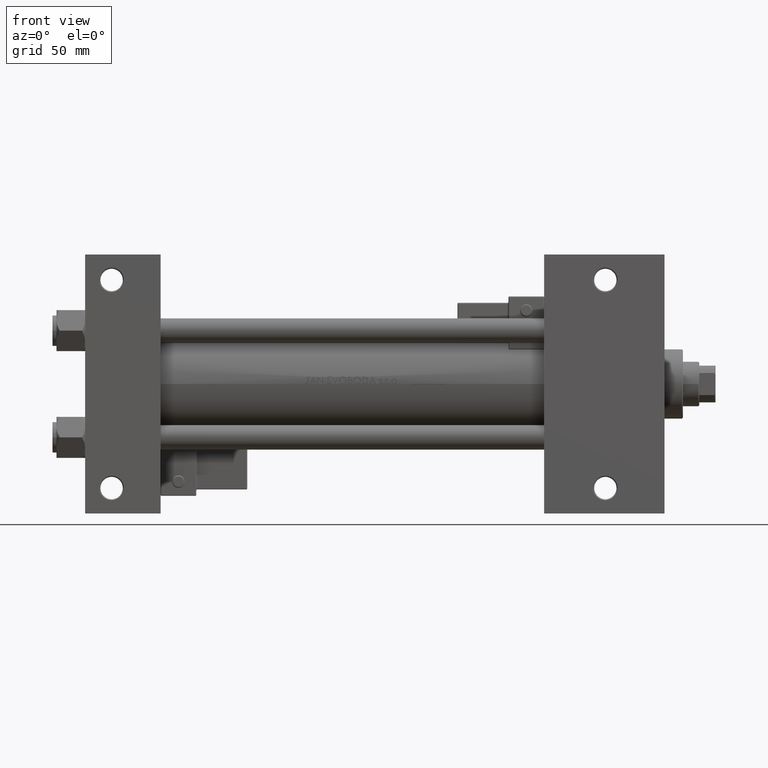
[diagram: clean part render]
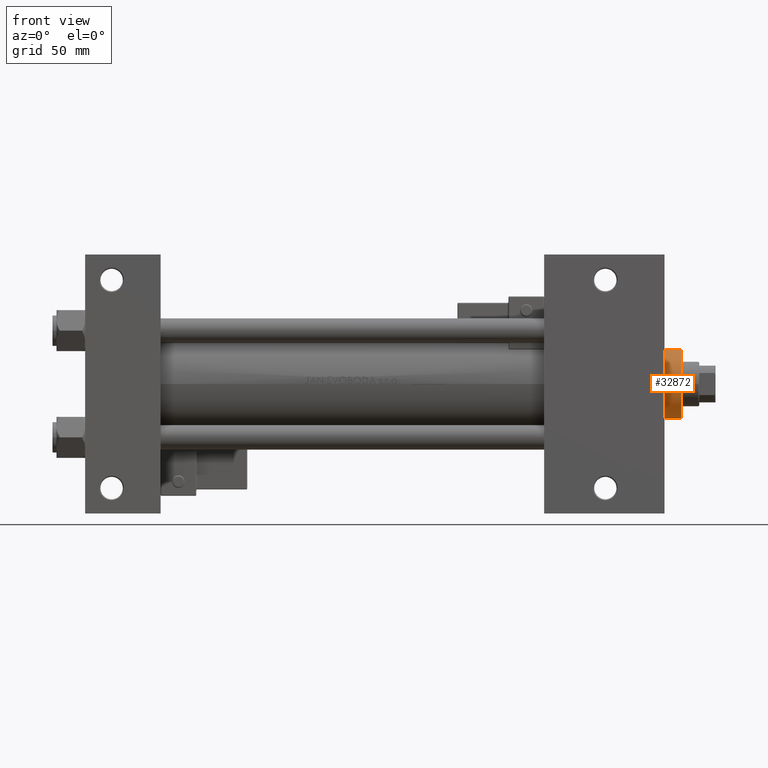
[diagram: same view with one face highlighted and labeled with its STEP entity id]
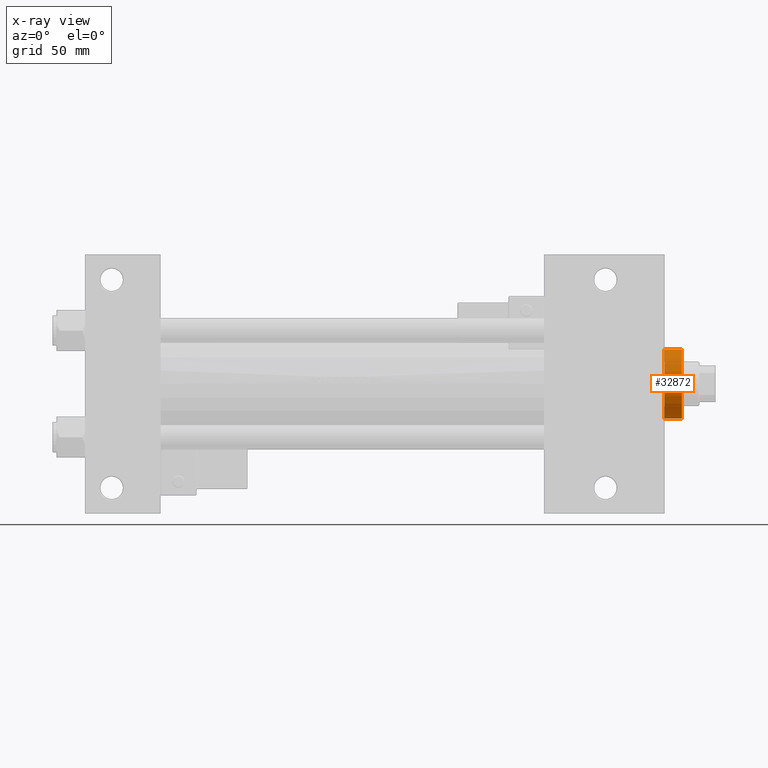
[diagram: x-ray of the same camera — body ghosted, the highlighted face saturated]
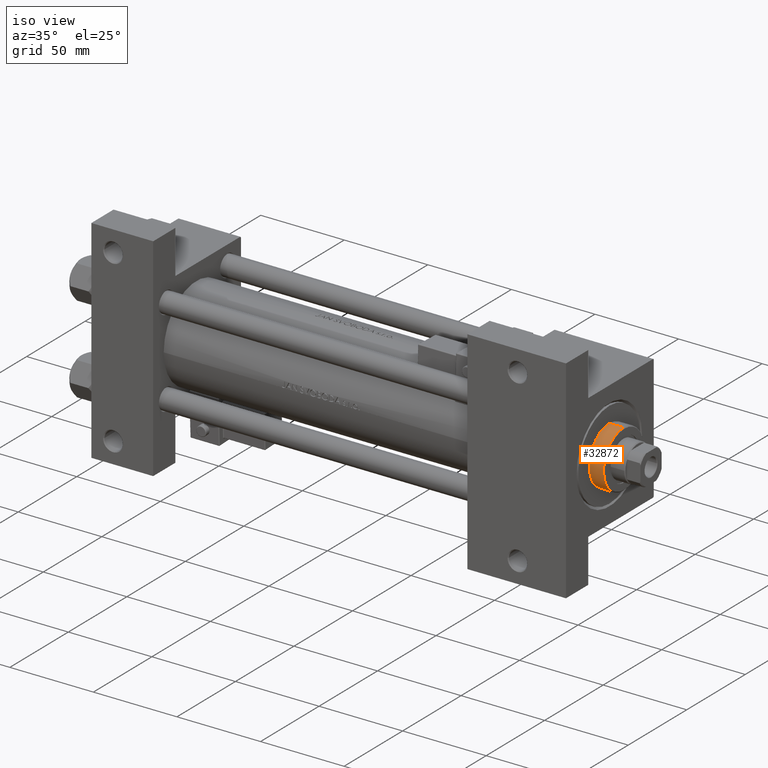
[diagram: same view with one face highlighted and labeled with its STEP entity id]
A machine part, front view. The second image highlights one B-rep face of the part: STEP entity #32872.
The next image is the same camera in x-ray: the body ghosted, the highlighted face saturated — about 0% of this face is hidden behind the body in this view.
A second angle (iso view) of the same face is appended — the face is thin or edge-on in the first view.
In plain terms, the highlighted cylindrical surface (edge-blend (fillet) strip) has radius 17 mm, axis along (-1, -0, 0).
Its self-contained STEP definition (entity closure, byte-faithful):
#762 = CARTESIAN_POINT ( 'NONE',  ( 0.000000000000000000, 0.000000000000000000, 37.19999999999999574 ) ) ;
#1821 = EDGE_LOOP ( 'NONE', ( #39322, #24455, #22332, #39094 ) ) ;
#3299 = CARTESIAN_POINT ( 'NONE',  ( -17.00000000000000000, 0.000000000000000000, 37.19999999999999574 ) ) ;
#3657 = CARTESIAN_POINT ( 'NONE',  ( 17.00000000000000000, 2.081899558550500280E-15, 37.69999999999999574 ) ) ;
#4299 = VERTEX_POINT ( 'NONE', #20470 ) ;
#8144 = VECTOR ( 'NONE', #45166, 1000.000000000000000 ) ;
#8539 = DIRECTION ( 'NONE',  ( 1.000000000000000000, 0.000000000000000000, 0.000000000000000000 ) ) ;
#9170 = LINE ( 'NONE', #45419, #8144 ) ;
#9932 = CIRCLE ( 'NONE', #17397, 17.00000000000000000 ) ;
#11845 = DIRECTION ( 'NONE',  ( 0.000000000000000000, 0.000000000000000000, 1.000000000000000000 ) ) ;
#11947 = DIRECTION ( 'NONE',  ( -0.000000000000000000, -0.000000000000000000, -1.000000000000000000 ) ) ;
#15261 = VERTEX_POINT ( 'NONE', #3299 ) ;
#17397 = AXIS2_PLACEMENT_3D ( 'NONE', #34649, #11845, #24023 ) ;
#17950 = CYLINDRICAL_SURFACE ( 'NONE', #49365, 17.00000000000000000 ) ;
#20470 = CARTESIAN_POINT ( 'NONE',  ( 17.00000000000000000, 2.081899558550500280E-15, 28.69999999999999929 ) ) ;
#21855 = CARTESIAN_POINT ( 'NONE',  ( -17.00000000000000000, 0.000000000000000000, 28.69999999999999929 ) ) ;
#22332 = ORIENTED_EDGE ( 'NONE', *, *, #39666, .T. ) ;
#23808 = DIRECTION ( 'NONE',  ( 0.000000000000000000, 0.000000000000000000, -1.000000000000000000 ) ) ;
#23889 = EDGE_CURVE ( 'NONE', #43953, #4299, #39150, .T. ) ;
#24023 = DIRECTION ( 'NONE',  ( 1.000000000000000000, 0.000000000000000000, 0.000000000000000000 ) ) ;
#24455 = ORIENTED_EDGE ( 'NONE', *, *, #38136, .T. ) ;
#24965 = CARTESIAN_POINT ( 'NONE',  ( 0.000000000000000000, 0.000000000000000000, 37.69999999999999574 ) ) ;
#25600 = AXIS2_PLACEMENT_3D ( 'NONE', #762, #23808, #8539 ) ;
#25721 = DIRECTION ( 'NONE',  ( -0.000000000000000000, -0.000000000000000000, -1.000000000000000000 ) ) ;
#27847 = CARTESIAN_POINT ( 'NONE',  ( 17.00000000000000000, 2.081899558550500280E-15, 37.19999999999999574 ) ) ;
#32872 = ADVANCED_FACE ( 'NONE', ( #49786 ), #17950, .T. ) ;
#34649 = CARTESIAN_POINT ( 'NONE',  ( 0.000000000000000000, 0.000000000000000000, 28.69999999999999929 ) ) ;
#34881 = VECTOR ( 'NONE', #11947, 1000.000000000000000 ) ;
#36898 = DIRECTION ( 'NONE',  ( -1.000000000000000000, 0.000000000000000000, 0.000000000000000000 ) ) ;
#38136 = EDGE_CURVE ( 'NONE', #43953, #15261, #42125, .T. ) ;
#39094 = ORIENTED_EDGE ( 'NONE', *, *, #43521, .T. ) ;
#39150 = LINE ( 'NONE', #3657, #34881 ) ;
#39322 = ORIENTED_EDGE ( 'NONE', *, *, #23889, .F. ) ;
#39666 = EDGE_CURVE ( 'NONE', #15261, #45057, #9170, .T. ) ;
#42125 = CIRCLE ( 'NONE', #25600, 17.00000000000000000 ) ;
#43521 = EDGE_CURVE ( 'NONE', #45057, #4299, #9932, .T. ) ;
#43953 = VERTEX_POINT ( 'NONE', #27847 ) ;
#45057 = VERTEX_POINT ( 'NONE', #21855 ) ;
#45166 = DIRECTION ( 'NONE',  ( -0.000000000000000000, -0.000000000000000000, -1.000000000000000000 ) ) ;
#45419 = CARTESIAN_POINT ( 'NONE',  ( -17.00000000000000000, 0.000000000000000000, 37.69999999999999574 ) ) ;
#49365 = AXIS2_PLACEMENT_3D ( 'NONE', #24965, #25721, #36898 ) ;
#49786 = FACE_OUTER_BOUND ( 'NONE', #1821, .T. ) ;